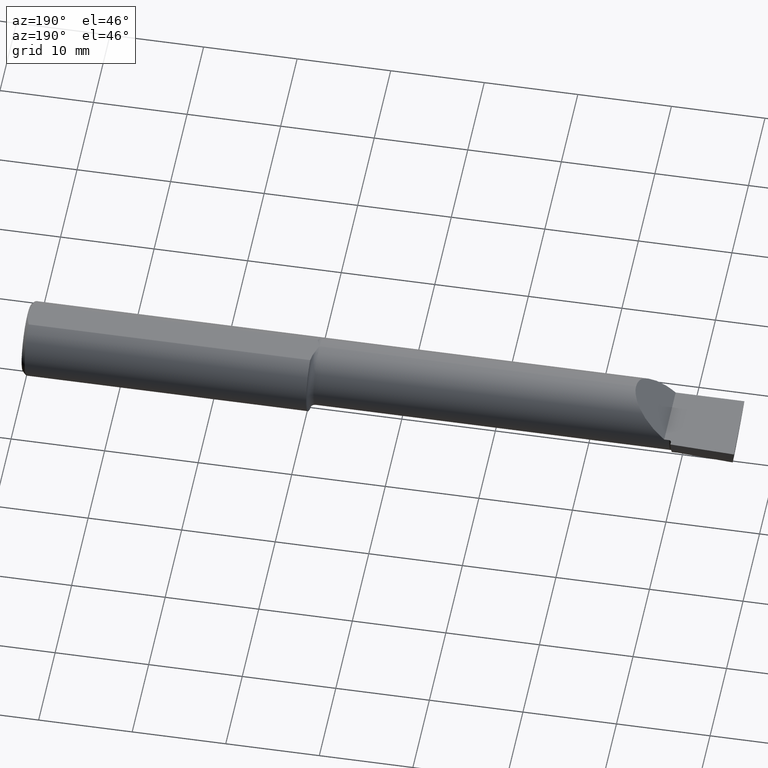
[diagram: clean part render]
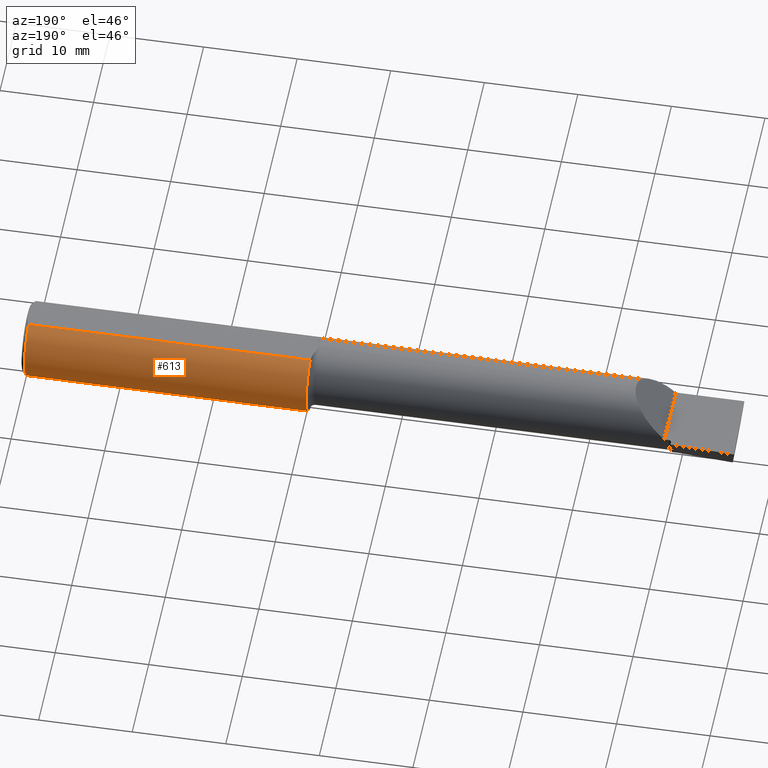
[diagram: same view with one face highlighted and labeled with its STEP entity id]
A machine part, auxiliary view. The second image highlights one B-rep face of the part: STEP entity #613.
In plain terms, the highlighted cylindrical surface (partial cylindrical patch) has radius 3.9649 mm, axis along (1, -0, -0).
Its self-contained STEP definition (entity closure, byte-faithful):
#15 = CARTESIAN_POINT ( 'NONE',  ( -3.000000000000000444, 0.000000000000000000, 0.000000000000000000 ) ) ;
#23 = VERTEX_POINT ( 'NONE', #580 ) ;
#26 = VERTEX_POINT ( 'NONE', #119 ) ;
#42 = CARTESIAN_POINT ( 'NONE',  ( -1.201996614417090603, 0.006087683071544604425, -0.1560999999999810872 ) ) ;
#47 = ORIENTED_EDGE ( 'NONE', *, *, #238, .T. ) ;
#59 = CARTESIAN_POINT ( 'NONE',  ( -1.200000000000000400, 0.07069999999999972140, 0.1391715488165596037 ) ) ;
#65 = CIRCLE ( 'NONE', #260, 0.1560999999999999888 ) ;
#76 = EDGE_LOOP ( 'NONE', ( #115, #660, #306, #702, #392, #47 ) ) ;
#94 = DIRECTION ( 'NONE',  ( 1.000000000000000000, -0.000000000000000000, -0.000000000000000000 ) ) ;
#115 = ORIENTED_EDGE ( 'NONE', *, *, #645, .F. ) ;
#116 = DIRECTION ( 'NONE',  ( -1.000000000000000000, 0.000000000000000000, 0.000000000000000000 ) ) ;
#119 = CARTESIAN_POINT ( 'NONE',  ( -1.200050504025077514, 0.06001999666777743658, 0.1440999999999999504 ) ) ;
#123 = CARTESIAN_POINT ( 'NONE',  ( -1.200050504025077514, 0.06001999666777743658, 0.1440999999999999504 ) ) ;
#145 = LINE ( 'NONE', #603, #322 ) ;
#155 = AXIS2_PLACEMENT_3D ( 'NONE', #15, #589, #421 ) ;
#177 = CARTESIAN_POINT ( 'NONE',  ( -1.200000000000000400, 0.07069999999999972140, 0.1391715488165596037 ) ) ;
#180 = VERTEX_POINT ( 'NONE', #497 ) ;
#185 = EDGE_CURVE ( 'NONE', #512, #180, #402, .T. ) ;
#203 = EDGE_CURVE ( 'NONE', #180, #648, #545, .T. ) ;
#207 = EDGE_CURVE ( 'NONE', #26, #23, #145, .T. ) ;
#209 = CARTESIAN_POINT ( 'NONE',  ( -1.200000000000000400, 0.000000000000000000, 0.000000000000000000 ) ) ;
#215 = CARTESIAN_POINT ( 'NONE',  ( -1.200730260234562863, 0.03041887409375934256, -0.1532281963622442456 ) ) ;
#238 = EDGE_CURVE ( 'NONE', #23, #578, #65, .T. ) ;
#260 = AXIS2_PLACEMENT_3D ( 'NONE', #450, #116, #339 ) ;
#262 = CARTESIAN_POINT ( 'NONE',  ( -1.201609734521863926, 0.01225372253022601748, -0.1557388326591280792 ) ) ;
#270 = CARTESIAN_POINT ( 'NONE',  ( -1.200348850910508469, 0.04224677410306555692, -0.1503974671975662203 ) ) ;
#288 = CARTESIAN_POINT ( 'NONE',  ( -1.200000000000000400, 0.06720526509779088664, 0.1409468955716052796 ) ) ;
#306 = ORIENTED_EDGE ( 'NONE', *, *, #203, .T. ) ;
#322 = VECTOR ( 'NONE', #549, 39.37007874015748143 ) ;
#339 = DIRECTION ( 'NONE',  ( 0.000000000000000000, 0.000000000000000000, 1.000000000000000000 ) ) ;
#362 = CARTESIAN_POINT ( 'NONE',  ( -3.000000000000000444, 0.000000000000000000, -0.1560999999999999888 ) ) ;
#388 = CARTESIAN_POINT ( 'NONE',  ( -1.200039703990472217, 0.05956456076033772584, -0.1444185486152129161 ) ) ;
#392 = ORIENTED_EDGE ( 'NONE', *, *, #207, .T. ) ;
#402 = B_SPLINE_CURVE_WITH_KNOTS ( 'NONE', 3,
 ( #553, #42, #262, #495, #215, #270, #730, #388, #659, #609 ),
 .UNSPECIFIED., .F., .F.,
 ( 4, 2, 2, 2, 4 ),
 ( 0.002475127250578773152, 0.002949952465897928786, 0.003424777681217084421, 0.003899602896536240489, 0.004374428111855396123 ),
 .UNSPECIFIED. ) ;
#421 = DIRECTION ( 'NONE',  ( 0.000000000000000000, 0.000000000000000000, -1.000000000000000000 ) ) ;
#446 = DIRECTION ( 'NONE',  ( 0.000000000000000000, 0.000000000000000000, 1.000000000000000000 ) ) ;
#450 = CARTESIAN_POINT ( 'NONE',  ( -0.01500000000000298143, 0.000000000000000000, 0.000000000000000000 ) ) ;
#451 = VECTOR ( 'NONE', #689, 39.37007874015748143 ) ;
#458 = FACE_OUTER_BOUND ( 'NONE', #76, .T. ) ;
#460 = CARTESIAN_POINT ( 'NONE',  ( -1.202458313762935660, 4.839520141882076981E-13, -0.1560999999999999888 ) ) ;
#472 = LINE ( 'NONE', #362, #451 ) ;
#495 = CARTESIAN_POINT ( 'NONE',  ( -1.200977043369841457, 0.02442086657637485697, -0.1542995754677716491 ) ) ;
#497 = CARTESIAN_POINT ( 'NONE',  ( -1.200000000000000400, 0.07069999999999972140, -0.1391715488165596037 ) ) ;
#512 = VERTEX_POINT ( 'NONE', #460 ) ;
#517 = CARTESIAN_POINT ( 'NONE',  ( -1.200016018626791192, 0.06364538733738600573, 0.1425899657466628279 ) ) ;
#523 = B_SPLINE_CURVE_WITH_KNOTS ( 'NONE', 3,
 ( #59, #288, #517, #123 ),
 .UNSPECIFIED., .F., .F.,
 ( 4, 4 ),
 ( 0.002773882331925843232, 0.003069179409190563382 ),
 .UNSPECIFIED. ) ;
#545 = CIRCLE ( 'NONE', #637, 0.1560999999999999888 ) ;
#549 = DIRECTION ( 'NONE',  ( 1.000000000000000000, -0.000000000000000000, -0.000000000000000000 ) ) ;
#553 = CARTESIAN_POINT ( 'NONE',  ( -1.202458313762935660, 4.839520141882076981E-13, -0.1560999999999999888 ) ) ;
#578 = VERTEX_POINT ( 'NONE', #593 ) ;
#580 = CARTESIAN_POINT ( 'NONE',  ( -0.01500000000000249051, 0.06001999666777751291, 0.1440999999999999504 ) ) ;
#589 = DIRECTION ( 'NONE',  ( 1.000000000000000000, -0.000000000000000000, -0.000000000000000000 ) ) ;
#593 = CARTESIAN_POINT ( 'NONE',  ( -0.01500000000000298143, 0.000000000000000000, -0.1560999999999999888 ) ) ;
#603 = CARTESIAN_POINT ( 'NONE',  ( -3.000000000000000444, 0.06001999666777744352, 0.1440999999999999226 ) ) ;
#609 = CARTESIAN_POINT ( 'NONE',  ( -1.200000000000000400, 0.07069999999999972140, -0.1391715488165596037 ) ) ;
#613 = ADVANCED_FACE ( 'NONE', ( #458 ), #644, .T. ) ;
#637 = AXIS2_PLACEMENT_3D ( 'NONE', #209, #94, #446 ) ;
#644 = CYLINDRICAL_SURFACE ( 'NONE', #155, 0.1560999999999999888 ) ;
#645 = EDGE_CURVE ( 'NONE', #512, #578, #472, .T. ) ;
#648 = VERTEX_POINT ( 'NONE', #177 ) ;
#659 = CARTESIAN_POINT ( 'NONE',  ( -1.200000000000000622, 0.06524677665728978448, -0.1419418197060340892 ) ) ;
#660 = ORIENTED_EDGE ( 'NONE', *, *, #185, .T. ) ;
#674 = EDGE_CURVE ( 'NONE', #648, #26, #523, .T. ) ;
#689 = DIRECTION ( 'NONE',  ( 1.000000000000000000, -0.000000000000000000, -0.000000000000000000 ) ) ;
#702 = ORIENTED_EDGE ( 'NONE', *, *, #674, .T. ) ;
#730 = CARTESIAN_POINT ( 'NONE',  ( -1.200214390677044607, 0.04807667021748262409, -0.1486381104007178933 ) ) ;